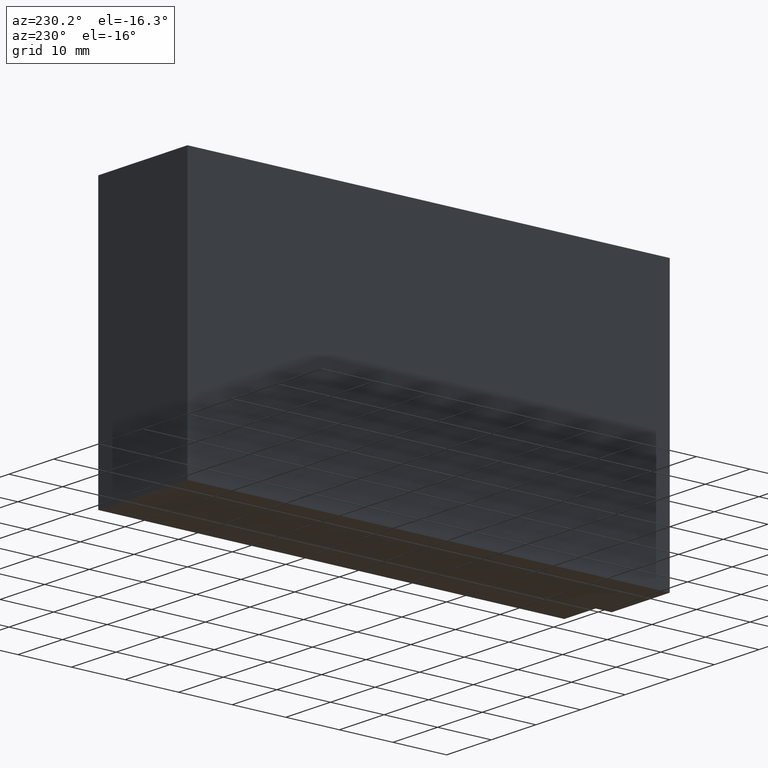
[diagram: clean part render]
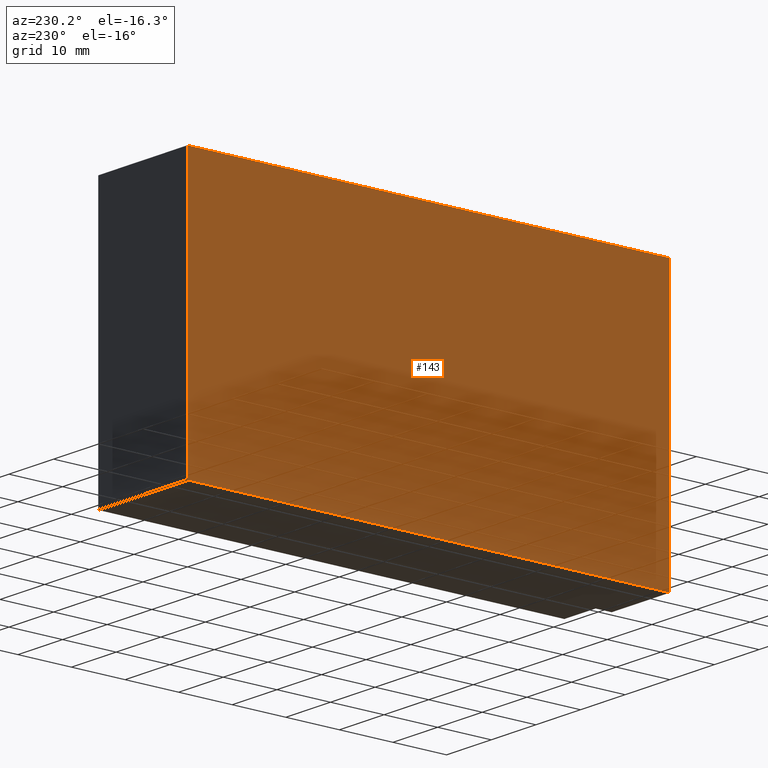
[diagram: same view with one face highlighted and labeled with its STEP entity id]
A machine part, auxiliary view. The second image highlights one B-rep face of the part: STEP entity #143.
In plain terms, the highlighted planar face has unit normal (-1, 0, 0).
Its self-contained STEP definition (entity closure, byte-faithful):
#17=FACE_OUTER_BOUND('',#25,.T.);
#25=EDGE_LOOP('',(#104,#105,#106,#107));
#34=LINE('',#222,#52);
#38=LINE('',#231,#56);
#39=LINE('',#232,#57);
#40=LINE('',#233,#58);
#52=VECTOR('',#184,10.);
#56=VECTOR('',#190,10.);
#57=VECTOR('',#191,10.);
#58=VECTOR('',#192,10.);
#70=VERTEX_POINT('',#219);
#71=VERTEX_POINT('',#221);
#74=VERTEX_POINT('',#229);
#75=VERTEX_POINT('',#230);
#82=EDGE_CURVE('',#71,#70,#34,.T.);
#86=EDGE_CURVE('',#74,#75,#38,.T.);
#87=EDGE_CURVE('',#71,#75,#39,.T.);
#88=EDGE_CURVE('',#74,#70,#40,.T.);
#104=ORIENTED_EDGE('',*,*,#86,.T.);
#105=ORIENTED_EDGE('',*,*,#87,.F.);
#106=ORIENTED_EDGE('',*,*,#82,.T.);
#107=ORIENTED_EDGE('',*,*,#88,.F.);
#135=PLANE('',#171);
#143=ADVANCED_FACE('',(#17),#135,.T.);
#171=AXIS2_PLACEMENT_3D('',#228,#188,#189);
#184=DIRECTION('',(0.,-1.,0.));
#188=DIRECTION('center_axis',(-1.,0.,0.));
#189=DIRECTION('ref_axis',(0.,0.,1.));
#190=DIRECTION('',(0.,1.,0.));
#191=DIRECTION('',(0.,0.,1.));
#192=DIRECTION('',(0.,0.,-1.));
#219=CARTESIAN_POINT('',(-10.,-45.,-25.));
#221=CARTESIAN_POINT('',(-10.,45.,-25.));
#222=CARTESIAN_POINT('',(-10.,45.,-25.));
#228=CARTESIAN_POINT('Origin',(-10.,-45.,0.));
#229=CARTESIAN_POINT('',(-10.,-45.,25.));
#230=CARTESIAN_POINT('',(-10.,45.,25.));
#231=CARTESIAN_POINT('',(-10.,45.,25.));
#232=CARTESIAN_POINT('',(-10.,45.,0.));
#233=CARTESIAN_POINT('',(-10.,-45.,0.));